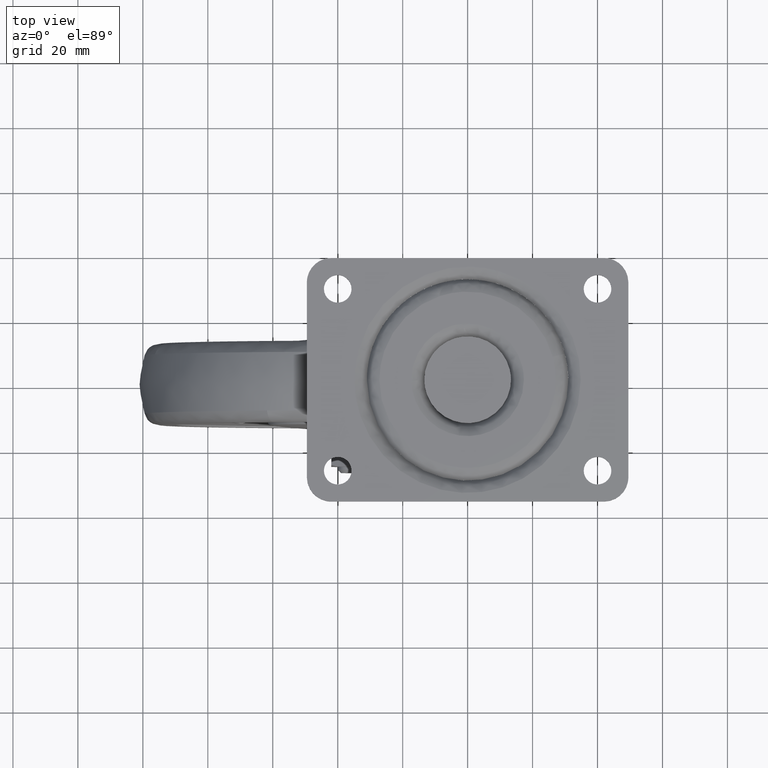
[diagram: clean part render]
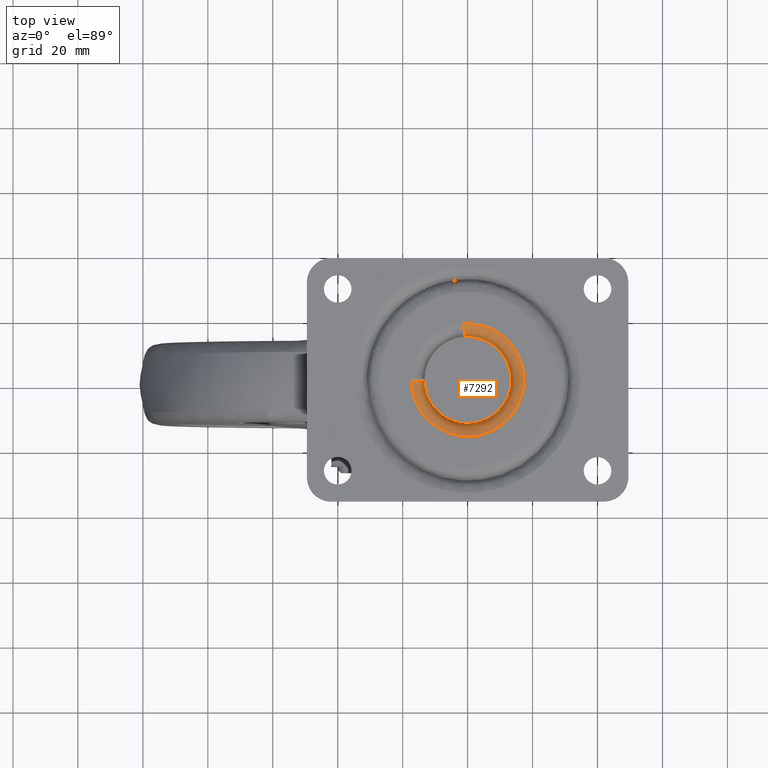
[diagram: same view with one face highlighted and labeled with its STEP entity id]
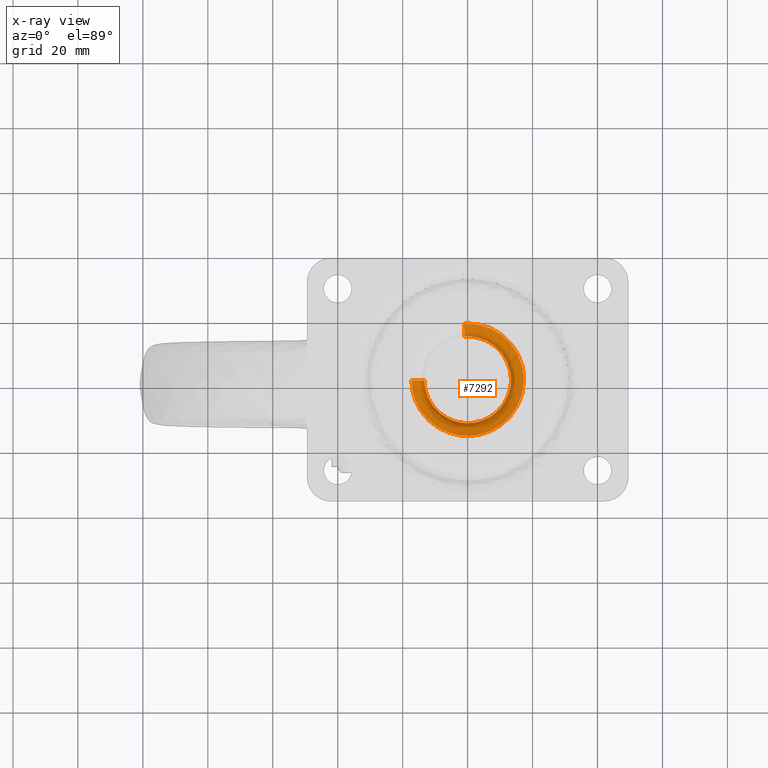
[diagram: x-ray of the same camera — body ghosted, the highlighted face saturated]
A machine part, top view. The second image highlights one B-rep face of the part: STEP entity #7292.
The next image is the same camera in x-ray: the body ghosted, the highlighted face saturated — about 0% of this face is hidden behind the body in this view.
In plain terms, the highlighted face is a freeform B-spline surface patch.
Its self-contained STEP definition (entity closure, byte-faithful):
#6019=CARTESIAN_POINT('',(12.497516776664749,-4.694099958137128,-4.0));
#6020=VERTEX_POINT('',#6019);
#6021=CARTESIAN_POINT('',(13.350000000000000,0.0,-4.0));
#6022=VERTEX_POINT('',#6021);
#6023=CARTESIAN_POINT('',(12.497516776664755,-4.694099958137128,-4.000000000000001));
#6024=CARTESIAN_POINT('',(13.350000000000007,-2.424458604001897,-4.000000000000000));
#6025=CARTESIAN_POINT('',(13.350000000000000,0.0,-4.0));
#6033=(BOUNDED_CURVE()B_SPLINE_CURVE(2,(#6023,#6024,#6025),.UNSPECIFIED.,.F.,.U.)B_SPLINE_CURVE_WITH_KNOTS((3,3),(0.440284170898666,0.500000000000000),.UNSPECIFIED.)CURVE()GEOMETRIC_REPRESENTATION_ITEM()RATIONAL_B_SPLINE_CURVE((0.893499554635467,0.930038554401585,1.0))REPRESENTATION_ITEM(''));
#6034=EDGE_CURVE('',#6020,#6022,#6033,.T.);
#6036=CARTESIAN_POINT('',(-0.930938908564239,13.317501745767530,-3.999999999622787));
#6037=VERTEX_POINT('',#6036);
#6038=CARTESIAN_POINT('',(13.350000000000000,0.0,-4.0));
#6039=CARTESIAN_POINT('',(13.350000000000000,13.350000000000000,-4.000000000000000));
#6040=CARTESIAN_POINT('',(0.0,13.350000000000000,-4.0));
#6041=CARTESIAN_POINT('',(-0.466036696959631,13.349999999999996,-4.0));
#6042=CARTESIAN_POINT('',(-0.930938908564239,13.317501745767533,-3.999999999622788));
#6050=(BOUNDED_CURVE()B_SPLINE_CURVE(2,(#6038,#6039,#6040,#6041,#6042),.UNSPECIFIED.,.F.,.U.)B_SPLINE_CURVE_WITH_KNOTS((3,2,3),(0.500000000000000,0.750000000000000,0.762166313465695),.UNSPECIFIED.)CURVE()GEOMETRIC_REPRESENTATION_ITEM()RATIONAL_B_SPLINE_CURVE((1.0,0.707106781186548,1.0,0.985746277151757,0.972879876385312))REPRESENTATION_ITEM(''));
#6051=EDGE_CURVE('',#6022,#6037,#6050,.T.);
#6068=CARTESIAN_POINT('',(-13.348945940118250,-0.167756632656920,-3.999999999607564));
#6069=VERTEX_POINT('',#6068);
#6083=CARTESIAN_POINT('',(-0.814998002891915,-13.325099558925510,-3.999999999999258));
#6084=VERTEX_POINT('',#6083);
#6085=CARTESIAN_POINT('',(-13.348945940118258,-0.167756632656920,-3.999999999607564));
#6086=CARTESIAN_POINT('',(-13.193111410152202,-12.568021710215714,-3.999999999976720));
#6087=CARTESIAN_POINT('',(-0.814998002891915,-13.325099558925507,-3.999999999999258));
#6095=(BOUNDED_CURVE()B_SPLINE_CURVE(2,(#6085,#6086,#6087),.UNSPECIFIED.,.F.,.U.)B_SPLINE_CURVE_WITH_KNOTS((3,3),(0.002215704083915,0.239332962239338),.UNSPECIFIED.)CURVE()GEOMETRIC_REPRESENTATION_ITEM()RATIONAL_B_SPLINE_CURVE((0.994854295631024,0.721978331099457,0.976072041667564))REPRESENTATION_ITEM(''));
#6096=EDGE_CURVE('',#6069,#6084,#6095,.T.);
#6174=CARTESIAN_POINT('',(-0.814998002891915,-13.325099558925503,-3.999999999999258));
#6175=CARTESIAN_POINT('',(-0.407879390138022,-13.349999999999998,-4.000000000000001));
#6176=CARTESIAN_POINT('',(0.0,-13.350000000000000,-4.0));
#6177=CARTESIAN_POINT('',(9.246338102505257,-13.350000000000005,-4.0));
#6178=CARTESIAN_POINT('',(12.497516776664755,-4.694099958137128,-4.000000000000001));
#6186=(BOUNDED_CURVE()B_SPLINE_CURVE(2,(#6174,#6175,#6176,#6177,#6178),.UNSPECIFIED.,.F.,.U.)B_SPLINE_CURVE_WITH_KNOTS((3,2,3),(0.239332962239338,0.250000000000000,0.440284170898666),.UNSPECIFIED.)CURVE()GEOMETRIC_REPRESENTATION_ITEM()RATIONAL_B_SPLINE_CURVE((0.976072041667564,0.987502787900300,1.0,0.777068226784963,0.893499554635467))REPRESENTATION_ITEM(''));
#6187=EDGE_CURVE('',#6084,#6020,#6186,.T.);
#7189=CARTESIAN_POINT('',(-0.931613368065639,13.327160767495291,-4.278148475791331));
#7190=CARTESIAN_POINT('',(-0.550196120695723,13.353823116112501,-4.278148475791329));
#7191=CARTESIAN_POINT('',(-0.167878303636279,13.358627716400838,-4.278148475791328));
#7192=CARTESIAN_POINT('',(13.190749412764550,13.526506020037106,-4.278148475791330));
#7193=CARTESIAN_POINT('',(13.358627716400838,0.167878303636280,-4.278148475791328));
#7194=CARTESIAN_POINT('',(13.526506020037109,-13.190749412764546,-4.278148475791330));
#7195=CARTESIAN_POINT('',(0.167878303636281,-13.358627716400838,-4.278148475791328));
#7196=CARTESIAN_POINT('',(-13.190749412764546,-13.526506020037109,-4.278148475791330));
#7197=CARTESIAN_POINT('',(-13.358627716400838,-0.167878303636282,-4.278148475791328));
#7198=CARTESIAN_POINT('',(-0.909310514195910,13.008108111871652,0.310149659348824));
#7199=CARTESIAN_POINT('',(-0.537024407944277,13.034132163009012,0.310149659348825));
#7200=CARTESIAN_POINT('',(-0.163859291670326,13.038821741012550,0.310149659348825));
#7201=CARTESIAN_POINT('',(12.874962449342224,13.202681032682877,0.310149659348824));
#7202=CARTESIAN_POINT('',(13.038821741012550,0.163859291670327,0.310149659348825));
#7203=CARTESIAN_POINT('',(13.202681032682882,-12.874962449342220,0.310149659348824));
#7204=CARTESIAN_POINT('',(0.163859291670328,-13.038821741012550,0.310149659348825));
#7205=CARTESIAN_POINT('',(-12.874962449342220,-13.202681032682882,0.310149659348824));
#7206=CARTESIAN_POINT('',(-13.038821741012550,-0.163859291670329,0.310149659348825));
#7207=CARTESIAN_POINT('',(-1.229267204717077,17.585236778525633,-0.009682603512310));
#7208=CARTESIAN_POINT('',(-0.725985768901244,17.620417843846681,-0.009682603512310));
#7209=CARTESIAN_POINT('',(-0.221516028126674,17.626757531284269,-0.009682603512310));
#7210=CARTESIAN_POINT('',(17.405241503157601,17.848273559410938,-0.009682603512310));
#7211=CARTESIAN_POINT('',(17.626757531284269,0.221516028126675,-0.009682603512310));
#7212=CARTESIAN_POINT('',(17.848273559410938,-17.405241503157583,-0.009682603512310));
#7213=CARTESIAN_POINT('',(0.221516028126676,-17.626757531284269,-0.009682603512310));
#7214=CARTESIAN_POINT('',(-17.405241503157583,-17.848273559410938,-0.009682603512310));
#7215=CARTESIAN_POINT('',(-17.626757531284269,-0.221516028126677,-0.009682603512310));
#7223=(BOUNDED_SURFACE()B_SPLINE_SURFACE(2,2,((#7189,#7198,#7207),(#7190,#7199,#7208),(#7191,#7200,#7209),(#7192,#7201,#7210),(#7193,#7202,#7211),(#7194,#7203,#7212),(#7195,#7204,#7213),(#7196,#7205,#7214),(#7197,#7206,#7215)),.UNSPECIFIED.,.F.,.F.,.U.)B_SPLINE_SURFACE_WITH_KNOTS((3,2,2,2,3),(3,3),(0.0,1.168289853993682,30.375564058062992,59.582838262132299,88.790112466201606),(0.0,7.289496831219103),.UNSPECIFIED.)GEOMETRIC_REPRESENTATION_ITEM()RATIONAL_B_SPLINE_SURFACE(((0.889999303923509,0.584039716581426,0.889999395383746),(0.899812874991286,0.590479626410353,0.899812967460008),(0.910479799180367,0.597479527817829,0.910479892745269),(0.643806440133804,0.422481825740123,0.643806506294180),(0.910479799180367,0.597479527817829,0.910479892745269),(0.643806440133804,0.422481825740123,0.643806506294180),(0.910479799180367,0.597479527817829,0.910479892745269),(0.643806440133804,0.422481825740123,0.643806506294180),(0.910479799180367,0.597479527817829,0.910479892745269)))REPRESENTATION_ITEM('')SURFACE());
#7224=ORIENTED_EDGE('',*,*,#6051,.F.);
#7225=ORIENTED_EDGE('',*,*,#6034,.F.);
#7226=ORIENTED_EDGE('',*,*,#6187,.F.);
#7227=ORIENTED_EDGE('',*,*,#6096,.F.);
#7228=CARTESIAN_POINT('',(-17.348630116928799,-0.218020791994217,-6.912640E-016));
#7229=VERTEX_POINT('',#7228);
#7230=CARTESIAN_POINT('',(-13.348945940118256,-0.167756632656920,-3.999999999607564));
#7231=CARTESIAN_POINT('',(-13.348945940905748,-0.167756632452621,-1.435882E-011));
#7232=CARTESIAN_POINT('',(-17.348630116928799,-0.218020791994217,-6.912640E-016));
#7240=(BOUNDED_CURVE()B_SPLINE_CURVE(2,(#7230,#7231,#7232),.UNSPECIFIED.,.F.,.U.)B_SPLINE_CURVE_WITH_KNOTS((3,3),(-1.725134643080594,-0.274865356721867),.UNSPECIFIED.)CURVE()GEOMETRIC_REPRESENTATION_ITEM()RATIONAL_B_SPLINE_CURVE((0.883342149581265,0.624617224164134,0.883342149651746))REPRESENTATION_ITEM(''));
#7241=EDGE_CURVE('',#6069,#7229,#7240,.T.);
#7242=ORIENTED_EDGE('',*,*,#7241,.T.);
#7243=CARTESIAN_POINT('',(17.350000000000001,0.0,0.0));
#7244=VERTEX_POINT('',#7243);
#7245=CARTESIAN_POINT('',(17.350000000000001,0.0,0.0));
#7246=CARTESIAN_POINT('',(17.350000000000001,-17.350000000000001,0.0));
#7247=CARTESIAN_POINT('',(0.0,-17.350000000000001,0.0));
#7248=CARTESIAN_POINT('',(-17.133331983856003,-17.350000000000005,0.0));
#7249=CARTESIAN_POINT('',(-17.348630116928803,-0.218020791994217,-6.912640E-016));
#7257=(BOUNDED_CURVE()B_SPLINE_CURVE(2,(#7245,#7246,#7247,#7248,#7249),.UNSPECIFIED.,.F.,.U.)B_SPLINE_CURVE_WITH_KNOTS((3,2,3),(0.500000000000000,0.750000000000000,0.997784295921360),.UNSPECIFIED.)CURVE()GEOMETRIC_REPRESENTATION_ITEM()RATIONAL_B_SPLINE_CURVE((1.0,0.707106781186548,1.0,0.709702639984672,0.994854295643164))REPRESENTATION_ITEM(''));
#7258=EDGE_CURVE('',#7244,#7229,#7257,.T.);
#7259=ORIENTED_EDGE('',*,*,#7258,.F.);
#7260=CARTESIAN_POINT('',(-1.209871915444610,17.307764436805069,-7.714596E-016));
#7261=VERTEX_POINT('',#7260);
#7262=CARTESIAN_POINT('',(-1.209871915444610,17.307764436805076,-7.714596E-016));
#7263=CARTESIAN_POINT('',(-0.605673161338256,17.350000000000005,0.0));
#7264=CARTESIAN_POINT('',(0.0,17.350000000000001,0.0));
#7265=CARTESIAN_POINT('',(17.350000000000001,17.350000000000001,0.0));
#7266=CARTESIAN_POINT('',(17.350000000000001,0.0,0.0));
#7274=(BOUNDED_CURVE()B_SPLINE_CURVE(2,(#7262,#7263,#7264,#7265,#7266),.UNSPECIFIED.,.F.,.U.)B_SPLINE_CURVE_WITH_KNOTS((3,2,3),(0.237833686517076,0.250000000000000,0.500000000000000),.UNSPECIFIED.)CURVE()GEOMETRIC_REPRESENTATION_ITEM()RATIONAL_B_SPLINE_CURVE((0.972879876348871,0.985746277131571,1.0,0.707106781186548,1.0))REPRESENTATION_ITEM(''));
#7275=EDGE_CURVE('',#7261,#7244,#7274,.T.);
#7276=ORIENTED_EDGE('',*,*,#7275,.F.);
#7277=CARTESIAN_POINT('',(-0.930938908564239,13.317501745767533,-3.999999999622788));
#7278=CARTESIAN_POINT('',(-0.930938908584761,13.317501746522359,-8.546626E-009));
#7279=CARTESIAN_POINT('',(-1.209871915444610,17.307764436805073,-7.714596E-016));
#7287=(BOUNDED_CURVE()B_SPLINE_CURVE(2,(#7277,#7278,#7279),.UNSPECIFIED.,.F.,.U.)B_SPLINE_CURVE_WITH_KNOTS((3,3),(-1.725134643088400,-0.274865358909316),.UNSPECIFIED.)CURVE()GEOMETRIC_REPRESENTATION_ITEM()RATIONAL_B_SPLINE_CURVE((0.863472075305245,0.610566960277088,0.863472074608502))REPRESENTATION_ITEM(''));
#7288=EDGE_CURVE('',#6037,#7261,#7287,.T.);
#7289=ORIENTED_EDGE('',*,*,#7288,.F.);
#7290=EDGE_LOOP('',(#7224,#7225,#7226,#7227,#7242,#7259,#7276,#7289));
#7291=FACE_OUTER_BOUND('',#7290,.T.);
#7292=ADVANCED_FACE('',(#7291),#7223,.T.);